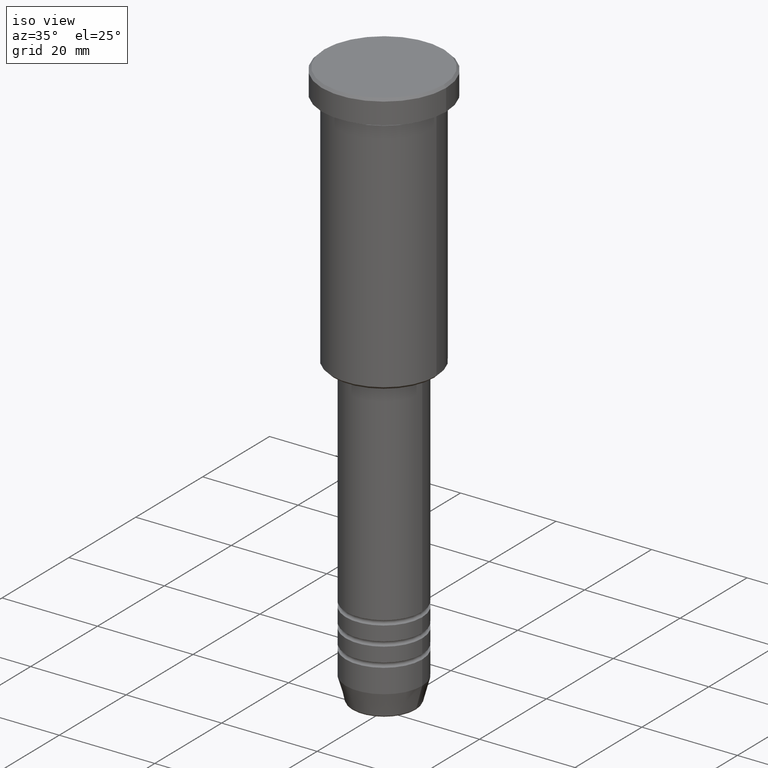
[diagram: clean part render]
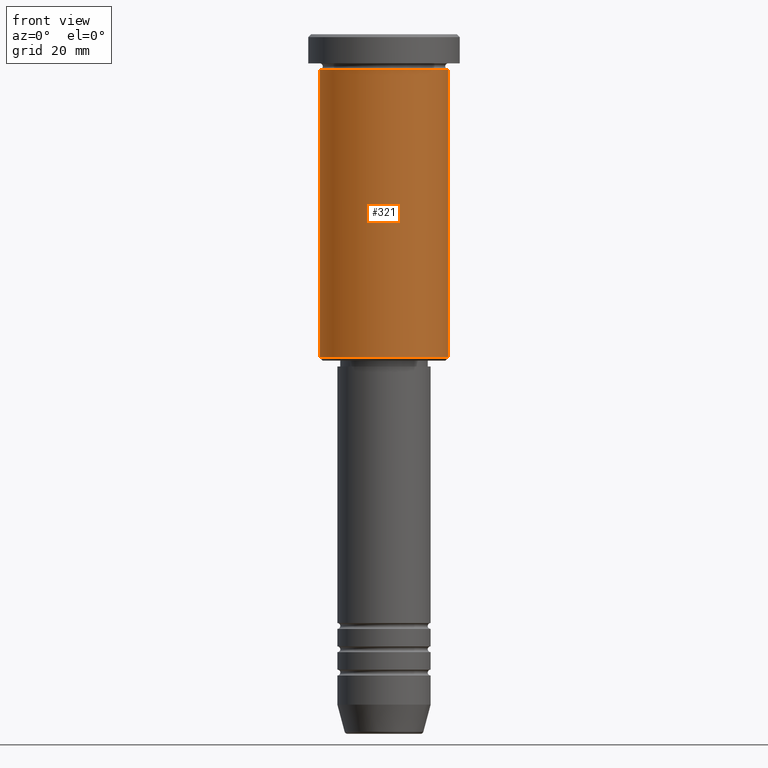
[diagram: tour spotlight — one face highlighted and labeled with its STEP entity id]
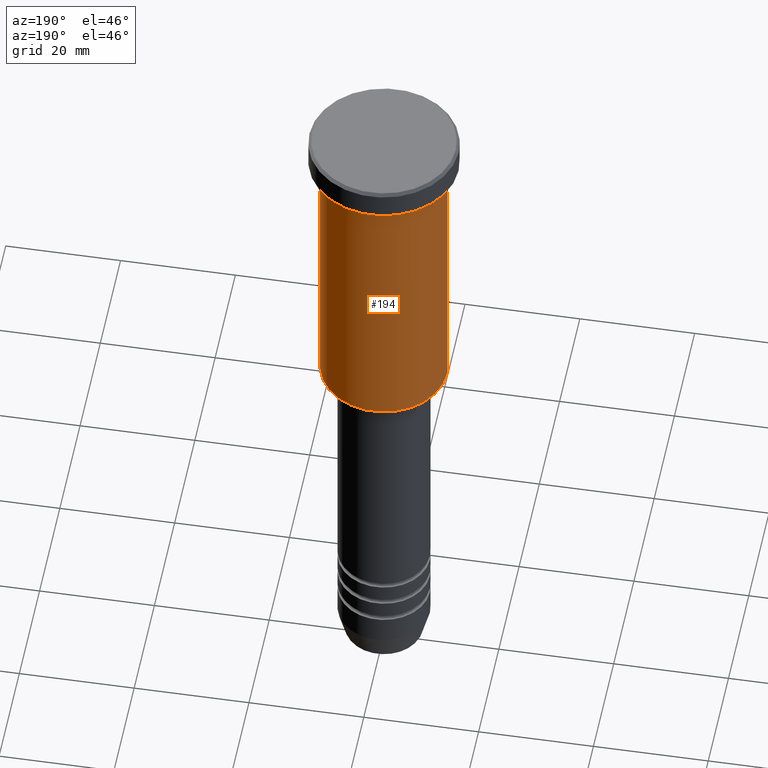
[diagram: tour spotlight — one face highlighted and labeled with its STEP entity id]
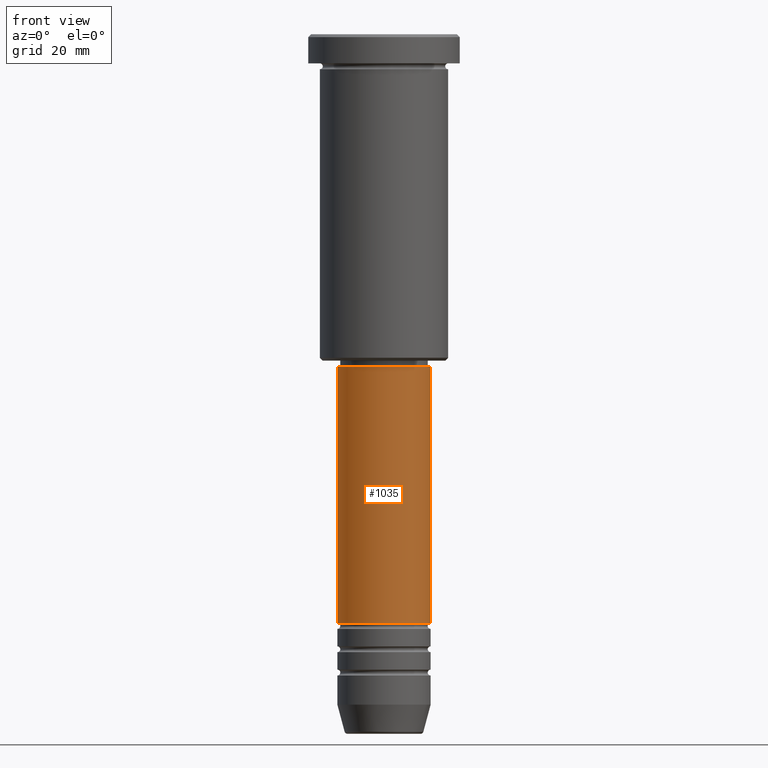
[diagram: tour spotlight — one face highlighted and labeled with its STEP entity id]
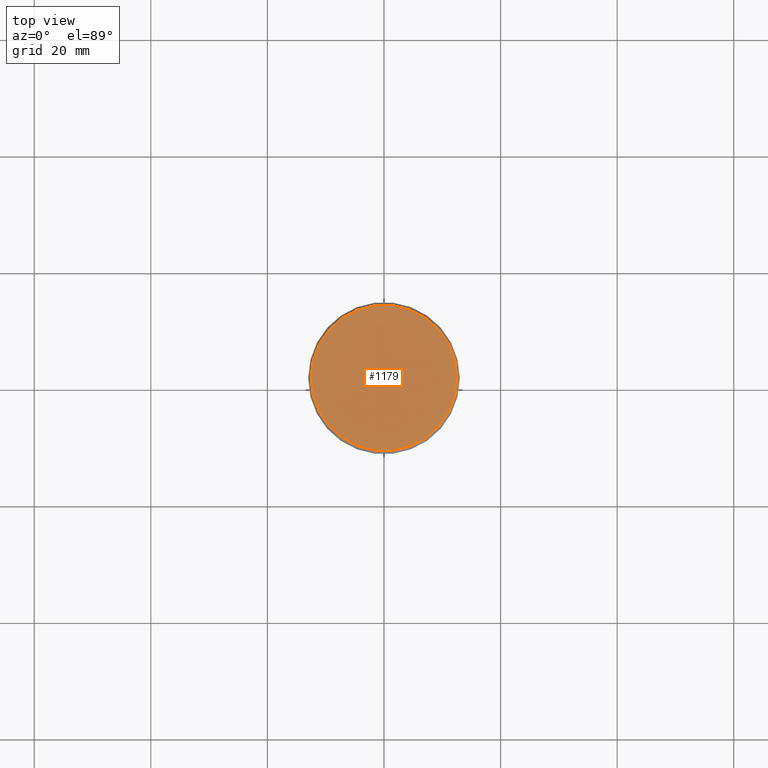
[diagram: tour spotlight — one face highlighted and labeled with its STEP entity id]
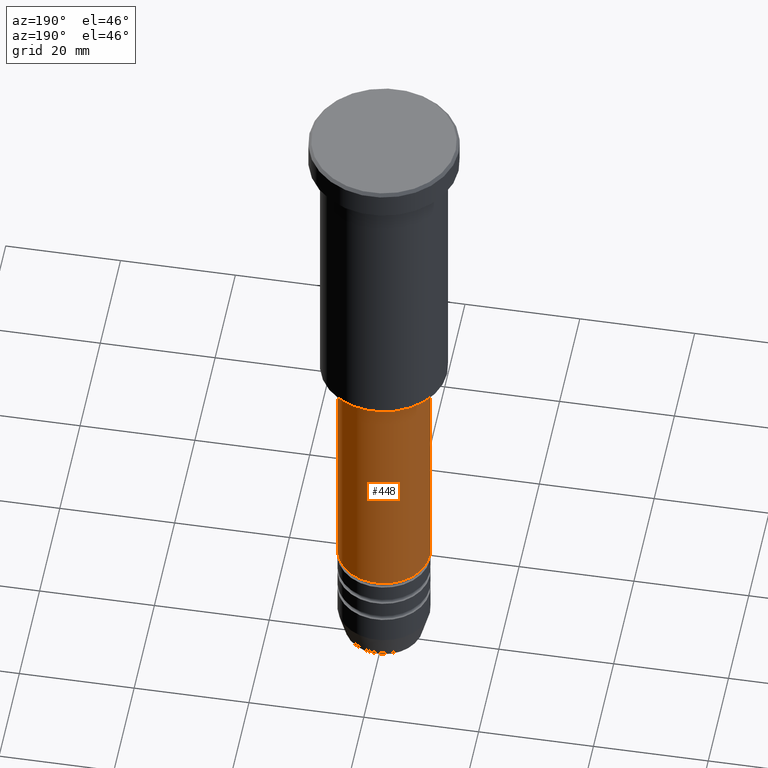
[diagram: tour spotlight — one face highlighted and labeled with its STEP entity id]
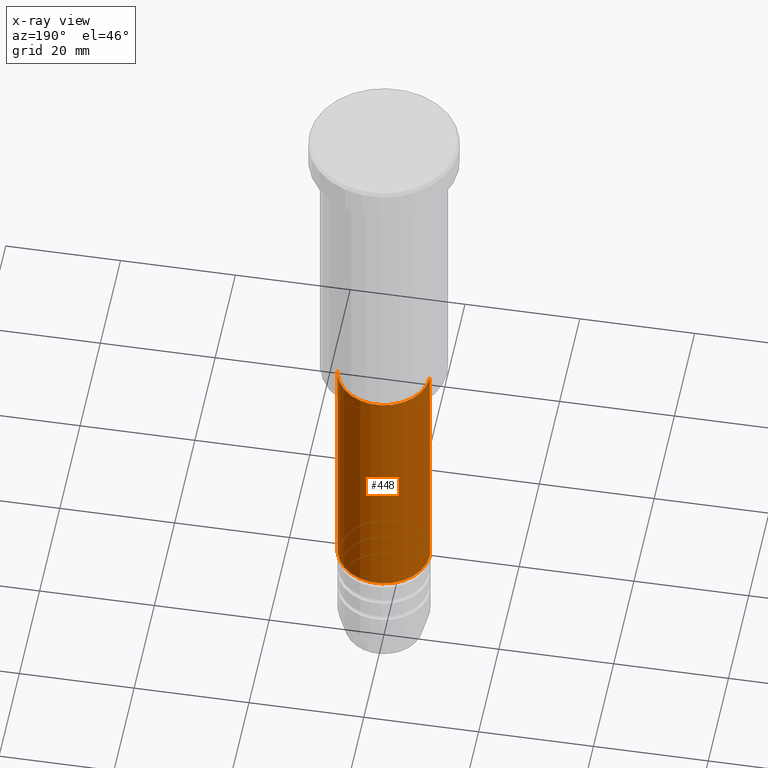
[diagram: x-ray of the same camera — body ghosted, this tour face saturated]
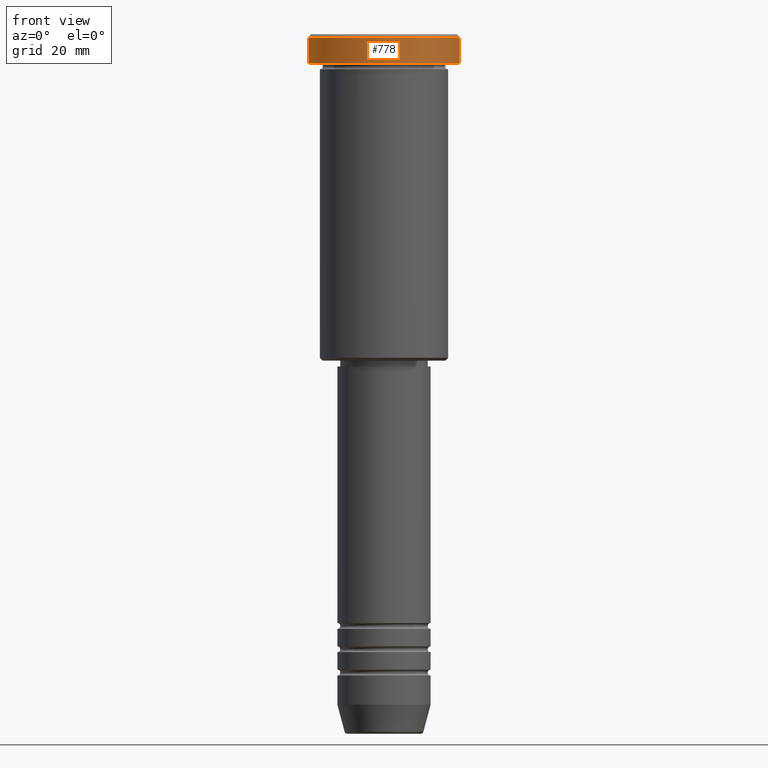
[diagram: tour spotlight — one face highlighted and labeled with its STEP entity id]
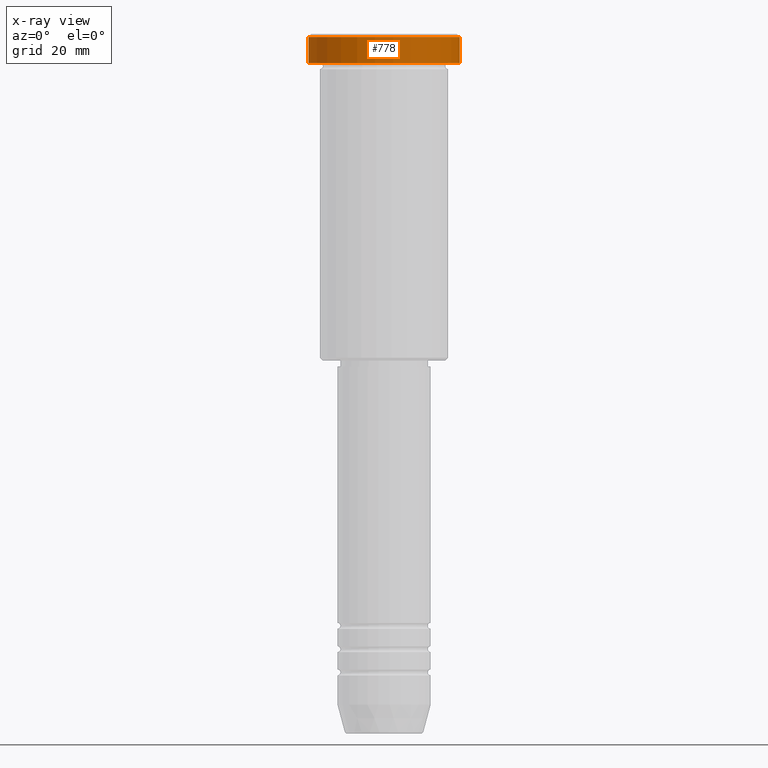
[diagram: x-ray of the same camera — body ghosted, this tour face saturated]
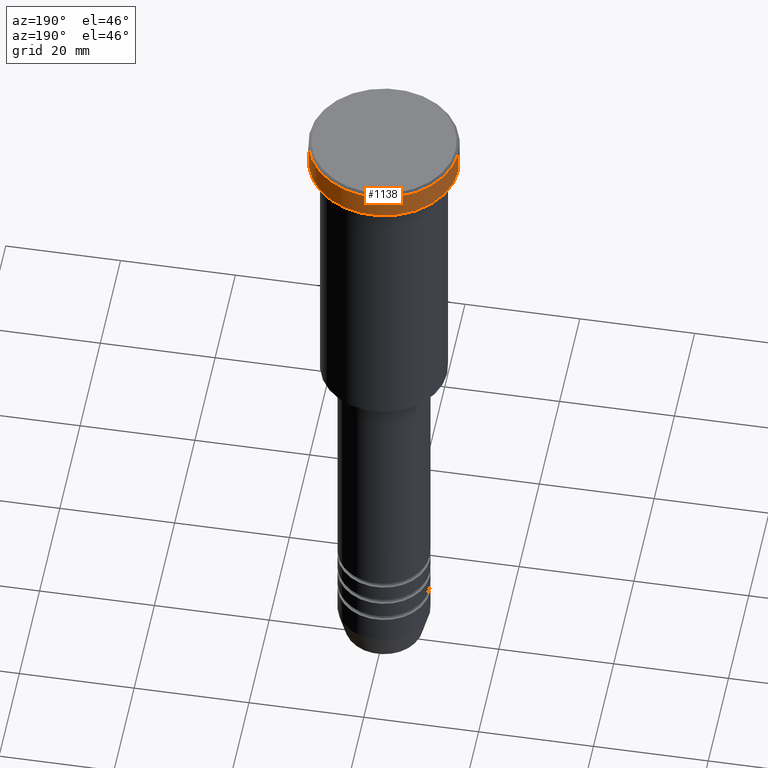
[diagram: tour spotlight — one face highlighted and labeled with its STEP entity id]
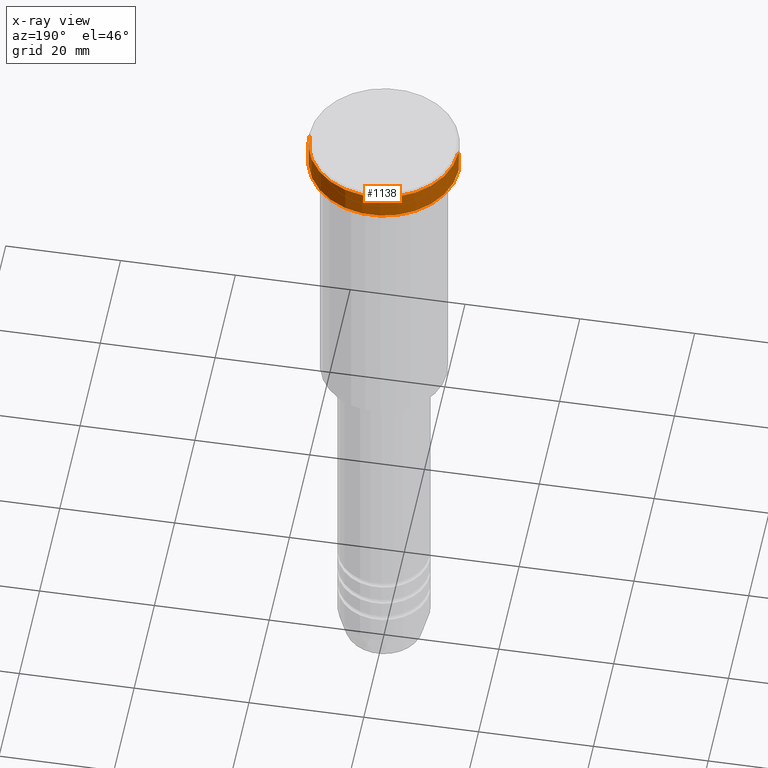
[diagram: x-ray of the same camera — body ghosted, this tour face saturated]
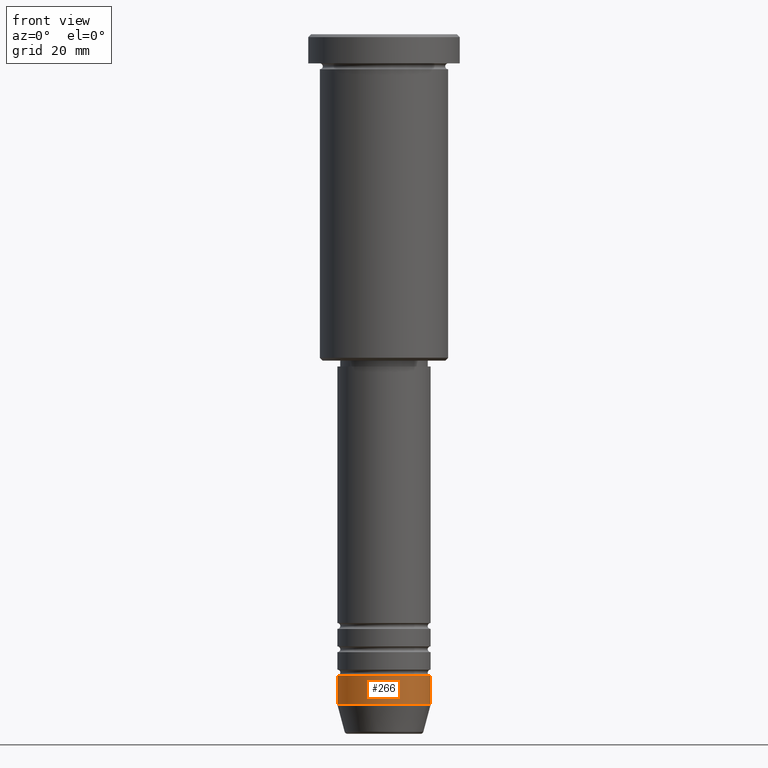
[diagram: tour spotlight — one face highlighted and labeled with its STEP entity id]
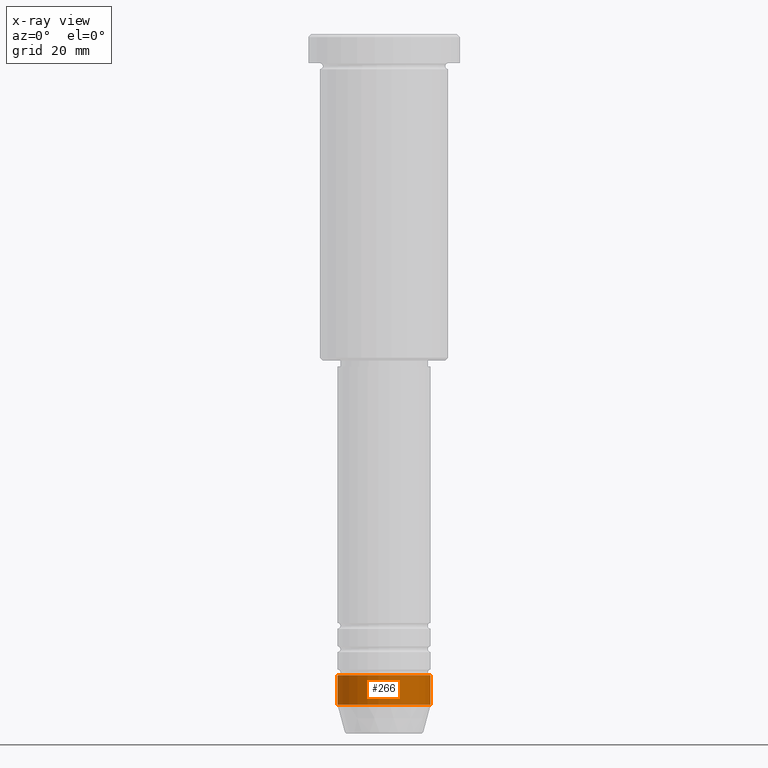
[diagram: x-ray of the same camera — body ghosted, this tour face saturated]
A machine part: a face-by-face anatomy tour. The part has 43 B-rep faces; the first image is the clean iso view, then the 8 largest visible faces are spotlighted one at a time (largest first), each with its STEP entity span.

Face 1 — front view, entity #321. In plain terms, the highlighted cylindrical surface (partial cylindrical patch) has radius 11 mm, axis along (-0, -0, 1).
Definition (entity closure, byte-faithful):
#12 = CARTESIAN_POINT ( 'NONE',  ( 11.00000000000000000, 0.000000000000000000, 0.000000000000000000 ) ) ;
#23 = CARTESIAN_POINT ( 'NONE',  ( 11.00000000000000000, 0.000000000000000000, -5.999999999999999112 ) ) ;
#27 = VECTOR ( 'NONE', #148, 1000.000000000000000 ) ;
#33 = EDGE_CURVE ( 'NONE', #792, #897, #925, .T. ) ;
#50 = FACE_OUTER_BOUND ( 'NONE', #862, .T. ) ;
#100 = CIRCLE ( 'NONE', #508, 11.00000000000000000 ) ;
#105 = ORIENTED_EDGE ( 'NONE', *, *, #33, .T. ) ;
#133 = EDGE_CURVE ( 'NONE', #744, #792, #136, .T. ) ;
#136 = CIRCLE ( 'NONE', #1044, 11.00000000000000000 ) ;
#148 = DIRECTION ( 'NONE',  ( -0.000000000000000000, -0.000000000000000000, 1.000000000000000000 ) ) ;
#171 = ORIENTED_EDGE ( 'NONE', *, *, #133, .T. ) ;
#177 = CARTESIAN_POINT ( 'NONE',  ( 0.000000000000000000, 0.000000000000000000, -5.999999999999999112 ) ) ;
#230 = CARTESIAN_POINT ( 'NONE',  ( 0.000000000000000000, 0.000000000000000000, 0.000000000000000000 ) ) ;
#275 = DIRECTION ( 'NONE',  ( 1.000000000000000000, 0.000000000000000000, 0.000000000000000000 ) ) ;
#321 = ADVANCED_FACE ( 'NONE', ( #50 ), #517, .T. ) ;
#327 = ORIENTED_EDGE ( 'NONE', *, *, #385, .F. ) ;
#340 = DIRECTION ( 'NONE',  ( -1.000000000000000000, 0.000000000000000000, 0.000000000000000000 ) ) ;
#385 = EDGE_CURVE ( 'NONE', #744, #1154, #1071, .T. ) ;
#416 = DIRECTION ( 'NONE',  ( -0.000000000000000000, -0.000000000000000000, 1.000000000000000000 ) ) ;
#508 = AXIS2_PLACEMENT_3D ( 'NONE', #177, #1161, #275 ) ;
#517 = CYLINDRICAL_SURFACE ( 'NONE', #1147, 11.00000000000000000 ) ;
#523 = DIRECTION ( 'NONE',  ( 1.000000000000000000, 0.000000000000000000, 0.000000000000000000 ) ) ;
#604 = CARTESIAN_POINT ( 'NONE',  ( -11.00000000000000000, 1.347111479062088405E-15, -5.999999999999999112 ) ) ;
#695 = ORIENTED_EDGE ( 'NONE', *, *, #980, .F. ) ;
#700 = CARTESIAN_POINT ( 'NONE',  ( -11.00000000000000000, 1.347111479062088405E-15, 0.000000000000000000 ) ) ;
#744 = VERTEX_POINT ( 'NONE', #1066 ) ;
#792 = VERTEX_POINT ( 'NONE', #908 ) ;
#862 = EDGE_LOOP ( 'NONE', ( #327, #171, #105, #695 ) ) ;
#897 = VERTEX_POINT ( 'NONE', #23 ) ;
#908 = CARTESIAN_POINT ( 'NONE',  ( 11.00000000000000000, 0.000000000000000000, -55.50000000000002132 ) ) ;
#925 = LINE ( 'NONE', #12, #1010 ) ;
#932 = DIRECTION ( 'NONE',  ( -0.000000000000000000, -0.000000000000000000, 1.000000000000000000 ) ) ;
#980 = EDGE_CURVE ( 'NONE', #1154, #897, #100, .T. ) ;
#1010 = VECTOR ( 'NONE', #932, 1000.000000000000000 ) ;
#1044 = AXIS2_PLACEMENT_3D ( 'NONE', #1164, #1085, #340 ) ;
#1066 = CARTESIAN_POINT ( 'NONE',  ( -11.00000000000000000, 1.347111479062088405E-15, -55.50000000000002132 ) ) ;
#1071 = LINE ( 'NONE', #700, #27 ) ;
#1085 = DIRECTION ( 'NONE',  ( -0.000000000000000000, -0.000000000000000000, 1.000000000000000000 ) ) ;
#1147 = AXIS2_PLACEMENT_3D ( 'NONE', #230, #416, #523 ) ;
#1154 = VERTEX_POINT ( 'NONE', #604 ) ;
#1161 = DIRECTION ( 'NONE',  ( -0.000000000000000000, -0.000000000000000000, 1.000000000000000000 ) ) ;
#1164 = CARTESIAN_POINT ( 'NONE',  ( 0.000000000000000000, 0.000000000000000000, -55.50000000000002132 ) ) ;

Face 2 — auxiliary view, entity #194. In plain terms, the highlighted cylindrical surface (partial cylindrical patch) has radius 11 mm, axis along (-0, -0, 1).
Definition (entity closure, byte-faithful):
#5 = AXIS2_PLACEMENT_3D ( 'NONE', #483, #286, #655 ) ;
#12 = CARTESIAN_POINT ( 'NONE',  ( 11.00000000000000000, 0.000000000000000000, 0.000000000000000000 ) ) ;
#23 = CARTESIAN_POINT ( 'NONE',  ( 11.00000000000000000, 0.000000000000000000, -5.999999999999999112 ) ) ;
#26 = DIRECTION ( 'NONE',  ( -0.000000000000000000, -0.000000000000000000, 1.000000000000000000 ) ) ;
#27 = VECTOR ( 'NONE', #148, 1000.000000000000000 ) ;
#33 = EDGE_CURVE ( 'NONE', #792, #897, #925, .T. ) ;
#148 = DIRECTION ( 'NONE',  ( -0.000000000000000000, -0.000000000000000000, 1.000000000000000000 ) ) ;
#185 = CIRCLE ( 'NONE', #794, 11.00000000000000000 ) ;
#194 = ADVANCED_FACE ( 'NONE', ( #377 ), #739, .T. ) ;
#247 = DIRECTION ( 'NONE',  ( -0.000000000000000000, -0.000000000000000000, 1.000000000000000000 ) ) ;
#286 = DIRECTION ( 'NONE',  ( -0.000000000000000000, -0.000000000000000000, 1.000000000000000000 ) ) ;
#377 = FACE_OUTER_BOUND ( 'NONE', #564, .T. ) ;
#385 = EDGE_CURVE ( 'NONE', #744, #1154, #1071, .T. ) ;
#392 = ORIENTED_EDGE ( 'NONE', *, *, #33, .F. ) ;
#483 = CARTESIAN_POINT ( 'NONE',  ( 0.000000000000000000, 0.000000000000000000, 0.000000000000000000 ) ) ;
#533 = ORIENTED_EDGE ( 'NONE', *, *, #592, .T. ) ;
#559 = CARTESIAN_POINT ( 'NONE',  ( 0.000000000000000000, 0.000000000000000000, -55.50000000000002132 ) ) ;
#564 = EDGE_LOOP ( 'NONE', ( #533, #1181, #884, #392 ) ) ;
#592 = EDGE_CURVE ( 'NONE', #792, #744, #1098, .T. ) ;
#604 = CARTESIAN_POINT ( 'NONE',  ( -11.00000000000000000, 1.347111479062088405E-15, -5.999999999999999112 ) ) ;
#621 = DIRECTION ( 'NONE',  ( -1.000000000000000000, 0.000000000000000000, 0.000000000000000000 ) ) ;
#655 = DIRECTION ( 'NONE',  ( 1.000000000000000000, 0.000000000000000000, 0.000000000000000000 ) ) ;
#700 = CARTESIAN_POINT ( 'NONE',  ( -11.00000000000000000, 1.347111479062088405E-15, 0.000000000000000000 ) ) ;
#726 = EDGE_CURVE ( 'NONE', #897, #1154, #185, .T. ) ;
#739 = CYLINDRICAL_SURFACE ( 'NONE', #5, 11.00000000000000000 ) ;
#742 = DIRECTION ( 'NONE',  ( 1.000000000000000000, 0.000000000000000000, 0.000000000000000000 ) ) ;
#744 = VERTEX_POINT ( 'NONE', #1066 ) ;
#792 = VERTEX_POINT ( 'NONE', #908 ) ;
#794 = AXIS2_PLACEMENT_3D ( 'NONE', #839, #26, #742 ) ;
#839 = CARTESIAN_POINT ( 'NONE',  ( 0.000000000000000000, 0.000000000000000000, -5.999999999999999112 ) ) ;
#884 = ORIENTED_EDGE ( 'NONE', *, *, #726, .F. ) ;
#897 = VERTEX_POINT ( 'NONE', #23 ) ;
#908 = CARTESIAN_POINT ( 'NONE',  ( 11.00000000000000000, 0.000000000000000000, -55.50000000000002132 ) ) ;
#925 = LINE ( 'NONE', #12, #1010 ) ;
#929 = AXIS2_PLACEMENT_3D ( 'NONE', #559, #247, #621 ) ;
#932 = DIRECTION ( 'NONE',  ( -0.000000000000000000, -0.000000000000000000, 1.000000000000000000 ) ) ;
#1010 = VECTOR ( 'NONE', #932, 1000.000000000000000 ) ;
#1066 = CARTESIAN_POINT ( 'NONE',  ( -11.00000000000000000, 1.347111479062088405E-15, -55.50000000000002132 ) ) ;
#1071 = LINE ( 'NONE', #700, #27 ) ;
#1098 = CIRCLE ( 'NONE', #929, 11.00000000000000000 ) ;
#1154 = VERTEX_POINT ( 'NONE', #604 ) ;
#1181 = ORIENTED_EDGE ( 'NONE', *, *, #385, .T. ) ;

Face 3 — front view, entity #1035. In plain terms, the highlighted cylindrical surface (partial cylindrical patch) has radius 8 mm, axis along (-0, -0, 1).
Definition (entity closure, byte-faithful):
#2 = CARTESIAN_POINT ( 'NONE',  ( 0.000000000000000000, 0.000000000000000000, -100.9999999999999716 ) ) ;
#43 = EDGE_CURVE ( 'NONE', #460, #1153, #707, .T. ) ;
#134 = ORIENTED_EDGE ( 'NONE', *, *, #705, .T. ) ;
#149 = ORIENTED_EDGE ( 'NONE', *, *, #244, .F. ) ;
#162 = CIRCLE ( 'NONE', #871, 8.000000000000000000 ) ;
#244 = EDGE_CURVE ( 'NONE', #486, #1153, #162, .T. ) ;
#271 = LINE ( 'NONE', #804, #1172 ) ;
#306 = CARTESIAN_POINT ( 'NONE',  ( -8.000000000000000000, 9.797174393178825657E-16, -57.00000000000002842 ) ) ;
#336 = CARTESIAN_POINT ( 'NONE',  ( -8.000000000000000000, 9.797174393178825657E-16, -100.9999999999999716 ) ) ;
#354 = CARTESIAN_POINT ( 'NONE',  ( 8.000000000000000000, 0.000000000000000000, 0.000000000000000000 ) ) ;
#399 = DIRECTION ( 'NONE',  ( 1.000000000000000000, 0.000000000000000000, 0.000000000000000000 ) ) ;
#438 = CARTESIAN_POINT ( 'NONE',  ( 8.000000000000000000, 0.000000000000000000, -57.00000000000002842 ) ) ;
#460 = VERTEX_POINT ( 'NONE', #806 ) ;
#486 = VERTEX_POINT ( 'NONE', #306 ) ;
#492 = VECTOR ( 'NONE', #618, 1000.000000000000000 ) ;
#539 = ORIENTED_EDGE ( 'NONE', *, *, #43, .T. ) ;
#573 = AXIS2_PLACEMENT_3D ( 'NONE', #1127, #678, #671 ) ;
#574 = CARTESIAN_POINT ( 'NONE',  ( 0.000000000000000000, 0.000000000000000000, -57.00000000000002842 ) ) ;
#576 = FACE_OUTER_BOUND ( 'NONE', #900, .T. ) ;
#618 = DIRECTION ( 'NONE',  ( -0.000000000000000000, -0.000000000000000000, 1.000000000000000000 ) ) ;
#631 = DIRECTION ( 'NONE',  ( -0.000000000000000000, -0.000000000000000000, 1.000000000000000000 ) ) ;
#650 = AXIS2_PLACEMENT_3D ( 'NONE', #2, #738, #748 ) ;
#671 = DIRECTION ( 'NONE',  ( 1.000000000000000000, 0.000000000000000000, 0.000000000000000000 ) ) ;
#678 = DIRECTION ( 'NONE',  ( -0.000000000000000000, -0.000000000000000000, 1.000000000000000000 ) ) ;
#705 = EDGE_CURVE ( 'NONE', #741, #460, #1047, .T. ) ;
#707 = LINE ( 'NONE', #354, #492 ) ;
#738 = DIRECTION ( 'NONE',  ( -0.000000000000000000, -0.000000000000000000, 1.000000000000000000 ) ) ;
#741 = VERTEX_POINT ( 'NONE', #336 ) ;
#748 = DIRECTION ( 'NONE',  ( 1.000000000000000000, 0.000000000000000000, 0.000000000000000000 ) ) ;
#782 = EDGE_CURVE ( 'NONE', #741, #486, #271, .T. ) ;
#804 = CARTESIAN_POINT ( 'NONE',  ( -8.000000000000000000, 9.797174393178825657E-16, 0.000000000000000000 ) ) ;
#806 = CARTESIAN_POINT ( 'NONE',  ( 8.000000000000000000, 0.000000000000000000, -100.9999999999999716 ) ) ;
#871 = AXIS2_PLACEMENT_3D ( 'NONE', #574, #934, #399 ) ;
#900 = EDGE_LOOP ( 'NONE', ( #1018, #134, #539, #149 ) ) ;
#934 = DIRECTION ( 'NONE',  ( -0.000000000000000000, -0.000000000000000000, 1.000000000000000000 ) ) ;
#1018 = ORIENTED_EDGE ( 'NONE', *, *, #782, .F. ) ;
#1035 = ADVANCED_FACE ( 'NONE', ( #576 ), #1051, .T. ) ;
#1047 = CIRCLE ( 'NONE', #650, 8.000000000000000000 ) ;
#1051 = CYLINDRICAL_SURFACE ( 'NONE', #573, 8.000000000000000000 ) ;
#1127 = CARTESIAN_POINT ( 'NONE',  ( 0.000000000000000000, 0.000000000000000000, 0.000000000000000000 ) ) ;
#1153 = VERTEX_POINT ( 'NONE', #438 ) ;
#1172 = VECTOR ( 'NONE', #631, 1000.000000000000000 ) ;

Face 4 — top view, entity #1179. In plain terms, the highlighted planar face has unit normal (0, -0, 1).
Definition (entity closure, byte-faithful):
#46 = EDGE_LOOP ( 'NONE', ( #845, #378 ) ) ;
#47 = DIRECTION ( 'NONE',  ( 0.000000000000000000, -0.000000000000000000, 1.000000000000000000 ) ) ;
#53 = PLANE ( 'NONE',  #876 ) ;
#99 = AXIS2_PLACEMENT_3D ( 'NONE', #441, #447, #943 ) ;
#129 = DIRECTION ( 'NONE',  ( -0.000000000000000000, -0.000000000000000000, 1.000000000000000000 ) ) ;
#198 = EDGE_CURVE ( 'NONE', #1021, #809, #913, .T. ) ;
#213 = DIRECTION ( 'NONE',  ( 1.000000000000000000, 0.000000000000000000, 0.000000000000000000 ) ) ;
#251 = DIRECTION ( 'NONE',  ( 1.000000000000000000, 0.000000000000000000, 0.000000000000000000 ) ) ;
#297 = CARTESIAN_POINT ( 'NONE',  ( -12.49999999999999645, 0.000000000000000000, 0.000000000000000000 ) ) ;
#328 = FACE_OUTER_BOUND ( 'NONE', #46, .T. ) ;
#345 = CARTESIAN_POINT ( 'NONE',  ( 0.000000000000000000, 0.000000000000000000, 0.000000000000000000 ) ) ;
#378 = ORIENTED_EDGE ( 'NONE', *, *, #759, .T. ) ;
#441 = CARTESIAN_POINT ( 'NONE',  ( 0.000000000000000000, 0.000000000000000000, 0.000000000000000000 ) ) ;
#447 = DIRECTION ( 'NONE',  ( -0.000000000000000000, -0.000000000000000000, 1.000000000000000000 ) ) ;
#449 = CARTESIAN_POINT ( 'NONE',  ( 12.49999999999999645, 1.561424668912875111E-15, 0.000000000000000000 ) ) ;
#682 = CIRCLE ( 'NONE', #99, 12.49999999999999645 ) ;
#759 = EDGE_CURVE ( 'NONE', #809, #1021, #682, .T. ) ;
#809 = VERTEX_POINT ( 'NONE', #449 ) ;
#845 = ORIENTED_EDGE ( 'NONE', *, *, #198, .T. ) ;
#876 = AXIS2_PLACEMENT_3D ( 'NONE', #345, #47, #251 ) ;
#913 = CIRCLE ( 'NONE', #1112, 12.49999999999999645 ) ;
#943 = DIRECTION ( 'NONE',  ( 1.000000000000000000, 0.000000000000000000, 0.000000000000000000 ) ) ;
#1021 = VERTEX_POINT ( 'NONE', #297 ) ;
#1112 = AXIS2_PLACEMENT_3D ( 'NONE', #1117, #129, #213 ) ;
#1117 = CARTESIAN_POINT ( 'NONE',  ( 0.000000000000000000, 0.000000000000000000, 0.000000000000000000 ) ) ;
#1179 = ADVANCED_FACE ( 'NONE', ( #328 ), #53, .T. ) ;

Face 5 — auxiliary view, entity #448. An x-ray twin of the same camera follows (body ghosted, this face saturated) — the face is partly hidden behind the body. In plain terms, the highlighted cylindrical surface (partial cylindrical patch) has radius 8 mm, axis along (-0, -0, 1).
Definition (entity closure, byte-faithful):
#43 = EDGE_CURVE ( 'NONE', #460, #1153, #707, .T. ) ;
#90 = DIRECTION ( 'NONE',  ( 1.000000000000000000, 0.000000000000000000, 0.000000000000000000 ) ) ;
#160 = EDGE_CURVE ( 'NONE', #1153, #486, #1168, .T. ) ;
#161 = AXIS2_PLACEMENT_3D ( 'NONE', #325, #1095, #90 ) ;
#203 = AXIS2_PLACEMENT_3D ( 'NONE', #909, #1001, #1162 ) ;
#255 = AXIS2_PLACEMENT_3D ( 'NONE', #762, #365, #623 ) ;
#270 = ORIENTED_EDGE ( 'NONE', *, *, #782, .T. ) ;
#271 = LINE ( 'NONE', #804, #1172 ) ;
#306 = CARTESIAN_POINT ( 'NONE',  ( -8.000000000000000000, 9.797174393178825657E-16, -57.00000000000002842 ) ) ;
#325 = CARTESIAN_POINT ( 'NONE',  ( 0.000000000000000000, 0.000000000000000000, -57.00000000000002842 ) ) ;
#336 = CARTESIAN_POINT ( 'NONE',  ( -8.000000000000000000, 9.797174393178825657E-16, -100.9999999999999716 ) ) ;
#343 = ORIENTED_EDGE ( 'NONE', *, *, #43, .F. ) ;
#348 = CYLINDRICAL_SURFACE ( 'NONE', #255, 8.000000000000000000 ) ;
#354 = CARTESIAN_POINT ( 'NONE',  ( 8.000000000000000000, 0.000000000000000000, 0.000000000000000000 ) ) ;
#365 = DIRECTION ( 'NONE',  ( -0.000000000000000000, -0.000000000000000000, 1.000000000000000000 ) ) ;
#438 = CARTESIAN_POINT ( 'NONE',  ( 8.000000000000000000, 0.000000000000000000, -57.00000000000002842 ) ) ;
#448 = ADVANCED_FACE ( 'NONE', ( #1106 ), #348, .T. ) ;
#460 = VERTEX_POINT ( 'NONE', #806 ) ;
#484 = ORIENTED_EDGE ( 'NONE', *, *, #557, .T. ) ;
#486 = VERTEX_POINT ( 'NONE', #306 ) ;
#492 = VECTOR ( 'NONE', #618, 1000.000000000000000 ) ;
#527 = CIRCLE ( 'NONE', #203, 8.000000000000000000 ) ;
#557 = EDGE_CURVE ( 'NONE', #460, #741, #527, .T. ) ;
#603 = EDGE_LOOP ( 'NONE', ( #484, #270, #899, #343 ) ) ;
#618 = DIRECTION ( 'NONE',  ( -0.000000000000000000, -0.000000000000000000, 1.000000000000000000 ) ) ;
#623 = DIRECTION ( 'NONE',  ( 1.000000000000000000, 0.000000000000000000, 0.000000000000000000 ) ) ;
#631 = DIRECTION ( 'NONE',  ( -0.000000000000000000, -0.000000000000000000, 1.000000000000000000 ) ) ;
#707 = LINE ( 'NONE', #354, #492 ) ;
#741 = VERTEX_POINT ( 'NONE', #336 ) ;
#762 = CARTESIAN_POINT ( 'NONE',  ( 0.000000000000000000, 0.000000000000000000, 0.000000000000000000 ) ) ;
#782 = EDGE_CURVE ( 'NONE', #741, #486, #271, .T. ) ;
#804 = CARTESIAN_POINT ( 'NONE',  ( -8.000000000000000000, 9.797174393178825657E-16, 0.000000000000000000 ) ) ;
#806 = CARTESIAN_POINT ( 'NONE',  ( 8.000000000000000000, 0.000000000000000000, -100.9999999999999716 ) ) ;
#899 = ORIENTED_EDGE ( 'NONE', *, *, #160, .F. ) ;
#909 = CARTESIAN_POINT ( 'NONE',  ( 0.000000000000000000, 0.000000000000000000, -100.9999999999999716 ) ) ;
#1001 = DIRECTION ( 'NONE',  ( -0.000000000000000000, -0.000000000000000000, 1.000000000000000000 ) ) ;
#1095 = DIRECTION ( 'NONE',  ( -0.000000000000000000, -0.000000000000000000, 1.000000000000000000 ) ) ;
#1106 = FACE_OUTER_BOUND ( 'NONE', #603, .T. ) ;
#1153 = VERTEX_POINT ( 'NONE', #438 ) ;
#1162 = DIRECTION ( 'NONE',  ( 1.000000000000000000, 0.000000000000000000, 0.000000000000000000 ) ) ;
#1168 = CIRCLE ( 'NONE', #161, 8.000000000000000000 ) ;
#1172 = VECTOR ( 'NONE', #631, 1000.000000000000000 ) ;

Face 6 — front view, entity #778. An x-ray twin of the same camera follows (body ghosted, this face saturated) — the face is partly hidden behind the body. In plain terms, the highlighted cylindrical surface (partial cylindrical patch) has radius 13 mm, axis along (-0, -0, 1).
Definition (entity closure, byte-faithful):
#25 = CARTESIAN_POINT ( 'NONE',  ( 0.000000000000000000, 0.000000000000000000, -0.5000000000000073275 ) ) ;
#79 = VECTOR ( 'NONE', #210, 1000.000000000000000 ) ;
#80 = EDGE_CURVE ( 'NONE', #437, #927, #311, .T. ) ;
#170 = DIRECTION ( 'NONE',  ( -0.000000000000000000, -0.000000000000000000, 1.000000000000000000 ) ) ;
#174 = DIRECTION ( 'NONE',  ( 1.000000000000000000, 0.000000000000000000, 0.000000000000000000 ) ) ;
#210 = DIRECTION ( 'NONE',  ( -0.000000000000000000, -0.000000000000000000, 1.000000000000000000 ) ) ;
#234 = VECTOR ( 'NONE', #770, 1000.000000000000000 ) ;
#263 = ORIENTED_EDGE ( 'NONE', *, *, #1028, .F. ) ;
#291 = AXIS2_PLACEMENT_3D ( 'NONE', #514, #170, #174 ) ;
#311 = CIRCLE ( 'NONE', #291, 13.00000000000000000 ) ;
#313 = DIRECTION ( 'NONE',  ( 1.000000000000000000, 0.000000000000000000, 0.000000000000000000 ) ) ;
#316 = AXIS2_PLACEMENT_3D ( 'NONE', #622, #380, #725 ) ;
#341 = EDGE_CURVE ( 'NONE', #927, #942, #1146, .T. ) ;
#368 = CARTESIAN_POINT ( 'NONE',  ( 13.00000000000000000, 0.000000000000000000, -5.000000000000000000 ) ) ;
#380 = DIRECTION ( 'NONE',  ( -0.000000000000000000, -0.000000000000000000, 1.000000000000000000 ) ) ;
#382 = VERTEX_POINT ( 'NONE', #693 ) ;
#403 = CARTESIAN_POINT ( 'NONE',  ( 13.00000000000000000, 0.000000000000000000, -0.5000000000000073275 ) ) ;
#437 = VERTEX_POINT ( 'NONE', #765 ) ;
#499 = DIRECTION ( 'NONE',  ( 0.000000000000000000, 0.000000000000000000, -1.000000000000000000 ) ) ;
#514 = CARTESIAN_POINT ( 'NONE',  ( 0.000000000000000000, 0.000000000000000000, -5.000000000000000000 ) ) ;
#531 = FACE_OUTER_BOUND ( 'NONE', #734, .T. ) ;
#586 = LINE ( 'NONE', #870, #79 ) ;
#607 = AXIS2_PLACEMENT_3D ( 'NONE', #25, #499, #313 ) ;
#614 = CARTESIAN_POINT ( 'NONE',  ( 13.00000000000000000, 0.000000000000000000, 0.000000000000000000 ) ) ;
#622 = CARTESIAN_POINT ( 'NONE',  ( 0.000000000000000000, 0.000000000000000000, 0.000000000000000000 ) ) ;
#693 = CARTESIAN_POINT ( 'NONE',  ( -13.00000000000000000, 1.592040838891559095E-15, -0.5000000000000073275 ) ) ;
#713 = ORIENTED_EDGE ( 'NONE', *, *, #1005, .T. ) ;
#717 = ORIENTED_EDGE ( 'NONE', *, *, #80, .T. ) ;
#725 = DIRECTION ( 'NONE',  ( 1.000000000000000000, 0.000000000000000000, 0.000000000000000000 ) ) ;
#734 = EDGE_LOOP ( 'NONE', ( #263, #717, #1086, #713 ) ) ;
#765 = CARTESIAN_POINT ( 'NONE',  ( -13.00000000000000000, 1.592040838891559095E-15, -5.000000000000000000 ) ) ;
#770 = DIRECTION ( 'NONE',  ( -0.000000000000000000, -0.000000000000000000, 1.000000000000000000 ) ) ;
#778 = ADVANCED_FACE ( 'NONE', ( #531 ), #989, .T. ) ;
#870 = CARTESIAN_POINT ( 'NONE',  ( -13.00000000000000000, 1.592040838891559095E-15, 0.000000000000000000 ) ) ;
#927 = VERTEX_POINT ( 'NONE', #368 ) ;
#942 = VERTEX_POINT ( 'NONE', #403 ) ;
#971 = CIRCLE ( 'NONE', #607, 13.00000000000000000 ) ;
#989 = CYLINDRICAL_SURFACE ( 'NONE', #316, 13.00000000000000000 ) ;
#1005 = EDGE_CURVE ( 'NONE', #942, #382, #971, .T. ) ;
#1028 = EDGE_CURVE ( 'NONE', #437, #382, #586, .T. ) ;
#1086 = ORIENTED_EDGE ( 'NONE', *, *, #341, .T. ) ;
#1146 = LINE ( 'NONE', #614, #234 ) ;

Face 7 — auxiliary view, entity #1138. An x-ray twin of the same camera follows (body ghosted, this face saturated) — the face is partly hidden behind the body. In plain terms, the highlighted cylindrical surface (partial cylindrical patch) has radius 13 mm, axis along (-0, -0, 1).
Definition (entity closure, byte-faithful):
#79 = VECTOR ( 'NONE', #210, 1000.000000000000000 ) ;
#188 = EDGE_CURVE ( 'NONE', #927, #437, #454, .T. ) ;
#210 = DIRECTION ( 'NONE',  ( -0.000000000000000000, -0.000000000000000000, 1.000000000000000000 ) ) ;
#223 = AXIS2_PLACEMENT_3D ( 'NONE', #1062, #1053, #890 ) ;
#232 = FACE_OUTER_BOUND ( 'NONE', #701, .T. ) ;
#234 = VECTOR ( 'NONE', #770, 1000.000000000000000 ) ;
#242 = CYLINDRICAL_SURFACE ( 'NONE', #223, 13.00000000000000000 ) ;
#315 = EDGE_CURVE ( 'NONE', #382, #942, #589, .T. ) ;
#341 = EDGE_CURVE ( 'NONE', #927, #942, #1146, .T. ) ;
#368 = CARTESIAN_POINT ( 'NONE',  ( 13.00000000000000000, 0.000000000000000000, -5.000000000000000000 ) ) ;
#382 = VERTEX_POINT ( 'NONE', #693 ) ;
#391 = AXIS2_PLACEMENT_3D ( 'NONE', #1079, #540, #1175 ) ;
#403 = CARTESIAN_POINT ( 'NONE',  ( 13.00000000000000000, 0.000000000000000000, -0.5000000000000073275 ) ) ;
#437 = VERTEX_POINT ( 'NONE', #765 ) ;
#454 = CIRCLE ( 'NONE', #749, 13.00000000000000000 ) ;
#459 = DIRECTION ( 'NONE',  ( 1.000000000000000000, 0.000000000000000000, 0.000000000000000000 ) ) ;
#472 = DIRECTION ( 'NONE',  ( -0.000000000000000000, -0.000000000000000000, 1.000000000000000000 ) ) ;
#520 = ORIENTED_EDGE ( 'NONE', *, *, #315, .T. ) ;
#540 = DIRECTION ( 'NONE',  ( 0.000000000000000000, 0.000000000000000000, -1.000000000000000000 ) ) ;
#586 = LINE ( 'NONE', #870, #79 ) ;
#589 = CIRCLE ( 'NONE', #391, 13.00000000000000000 ) ;
#614 = CARTESIAN_POINT ( 'NONE',  ( 13.00000000000000000, 0.000000000000000000, 0.000000000000000000 ) ) ;
#693 = CARTESIAN_POINT ( 'NONE',  ( -13.00000000000000000, 1.592040838891559095E-15, -0.5000000000000073275 ) ) ;
#701 = EDGE_LOOP ( 'NONE', ( #1074, #1004, #520, #1170 ) ) ;
#724 = CARTESIAN_POINT ( 'NONE',  ( 0.000000000000000000, 0.000000000000000000, -5.000000000000000000 ) ) ;
#749 = AXIS2_PLACEMENT_3D ( 'NONE', #724, #472, #459 ) ;
#765 = CARTESIAN_POINT ( 'NONE',  ( -13.00000000000000000, 1.592040838891559095E-15, -5.000000000000000000 ) ) ;
#770 = DIRECTION ( 'NONE',  ( -0.000000000000000000, -0.000000000000000000, 1.000000000000000000 ) ) ;
#870 = CARTESIAN_POINT ( 'NONE',  ( -13.00000000000000000, 1.592040838891559095E-15, 0.000000000000000000 ) ) ;
#890 = DIRECTION ( 'NONE',  ( 1.000000000000000000, 0.000000000000000000, 0.000000000000000000 ) ) ;
#927 = VERTEX_POINT ( 'NONE', #368 ) ;
#942 = VERTEX_POINT ( 'NONE', #403 ) ;
#1004 = ORIENTED_EDGE ( 'NONE', *, *, #1028, .T. ) ;
#1028 = EDGE_CURVE ( 'NONE', #437, #382, #586, .T. ) ;
#1053 = DIRECTION ( 'NONE',  ( -0.000000000000000000, -0.000000000000000000, 1.000000000000000000 ) ) ;
#1062 = CARTESIAN_POINT ( 'NONE',  ( 0.000000000000000000, 0.000000000000000000, 0.000000000000000000 ) ) ;
#1074 = ORIENTED_EDGE ( 'NONE', *, *, #188, .T. ) ;
#1079 = CARTESIAN_POINT ( 'NONE',  ( 0.000000000000000000, 0.000000000000000000, -0.5000000000000073275 ) ) ;
#1138 = ADVANCED_FACE ( 'NONE', ( #232 ), #242, .T. ) ;
#1146 = LINE ( 'NONE', #614, #234 ) ;
#1170 = ORIENTED_EDGE ( 'NONE', *, *, #341, .F. ) ;
#1175 = DIRECTION ( 'NONE',  ( 1.000000000000000000, 0.000000000000000000, 0.000000000000000000 ) ) ;

Face 8 — front view, entity #266. An x-ray twin of the same camera follows (body ghosted, this face saturated) — the face is partly hidden behind the body. In plain terms, the highlighted cylindrical surface (partial cylindrical patch) has radius 8 mm, axis along (-0, -0, 1).
Definition (entity closure, byte-faithful):
#44 = VERTEX_POINT ( 'NONE', #147 ) ;
#49 = EDGE_CURVE ( 'NONE', #130, #683, #735, .T. ) ;
#64 = ORIENTED_EDGE ( 'NONE', *, *, #760, .F. ) ;
#97 = AXIS2_PLACEMENT_3D ( 'NONE', #846, #681, #675 ) ;
#104 = CYLINDRICAL_SURFACE ( 'NONE', #97, 8.000000000000000000 ) ;
#110 = DIRECTION ( 'NONE',  ( -0.000000000000000000, -0.000000000000000000, 1.000000000000000000 ) ) ;
#130 = VERTEX_POINT ( 'NONE', #808 ) ;
#147 = CARTESIAN_POINT ( 'NONE',  ( -8.000000000000000000, 9.797174393178825657E-16, -109.9999999999999858 ) ) ;
#158 = DIRECTION ( 'NONE',  ( -0.000000000000000000, -0.000000000000000000, 1.000000000000000000 ) ) ;
#164 = AXIS2_PLACEMENT_3D ( 'NONE', #768, #110, #1119 ) ;
#183 = VECTOR ( 'NONE', #787, 1000.000000000000000 ) ;
#237 = ORIENTED_EDGE ( 'NONE', *, *, #422, .T. ) ;
#266 = ADVANCED_FACE ( 'NONE', ( #307 ), #104, .T. ) ;
#307 = FACE_OUTER_BOUND ( 'NONE', #825, .T. ) ;
#422 = EDGE_CURVE ( 'NONE', #683, #581, #888, .T. ) ;
#491 = EDGE_CURVE ( 'NONE', #130, #44, #921, .T. ) ;
#493 = AXIS2_PLACEMENT_3D ( 'NONE', #973, #158, #979 ) ;
#581 = VERTEX_POINT ( 'NONE', #823 ) ;
#598 = CARTESIAN_POINT ( 'NONE',  ( 8.000000000000000000, 0.000000000000000000, 0.000000000000000000 ) ) ;
#663 = VECTOR ( 'NONE', #672, 1000.000000000000000 ) ;
#672 = DIRECTION ( 'NONE',  ( -0.000000000000000000, -0.000000000000000000, 1.000000000000000000 ) ) ;
#675 = DIRECTION ( 'NONE',  ( 1.000000000000000000, 0.000000000000000000, 0.000000000000000000 ) ) ;
#681 = DIRECTION ( 'NONE',  ( -0.000000000000000000, -0.000000000000000000, 1.000000000000000000 ) ) ;
#683 = VERTEX_POINT ( 'NONE', #758 ) ;
#735 = CIRCLE ( 'NONE', #493, 8.000000000000000000 ) ;
#758 = CARTESIAN_POINT ( 'NONE',  ( 8.000000000000000000, 0.000000000000000000, -114.9999999999999858 ) ) ;
#760 = EDGE_CURVE ( 'NONE', #44, #581, #1014, .T. ) ;
#768 = CARTESIAN_POINT ( 'NONE',  ( 0.000000000000000000, 0.000000000000000000, -109.9999999999999858 ) ) ;
#787 = DIRECTION ( 'NONE',  ( -0.000000000000000000, -0.000000000000000000, 1.000000000000000000 ) ) ;
#808 = CARTESIAN_POINT ( 'NONE',  ( -8.000000000000000000, 9.797174393178825657E-16, -114.9999999999999858 ) ) ;
#823 = CARTESIAN_POINT ( 'NONE',  ( 8.000000000000000000, 0.000000000000000000, -109.9999999999999858 ) ) ;
#825 = EDGE_LOOP ( 'NONE', ( #976, #889, #237, #64 ) ) ;
#846 = CARTESIAN_POINT ( 'NONE',  ( 0.000000000000000000, 0.000000000000000000, 0.000000000000000000 ) ) ;
#851 = CARTESIAN_POINT ( 'NONE',  ( -8.000000000000000000, 9.797174393178825657E-16, 0.000000000000000000 ) ) ;
#888 = LINE ( 'NONE', #598, #183 ) ;
#889 = ORIENTED_EDGE ( 'NONE', *, *, #49, .T. ) ;
#921 = LINE ( 'NONE', #851, #663 ) ;
#973 = CARTESIAN_POINT ( 'NONE',  ( 0.000000000000000000, 0.000000000000000000, -114.9999999999999858 ) ) ;
#976 = ORIENTED_EDGE ( 'NONE', *, *, #491, .F. ) ;
#979 = DIRECTION ( 'NONE',  ( 1.000000000000000000, 0.000000000000000000, 0.000000000000000000 ) ) ;
#1014 = CIRCLE ( 'NONE', #164, 8.000000000000000000 ) ;
#1119 = DIRECTION ( 'NONE',  ( 1.000000000000000000, 0.000000000000000000, 0.000000000000000000 ) ) ;